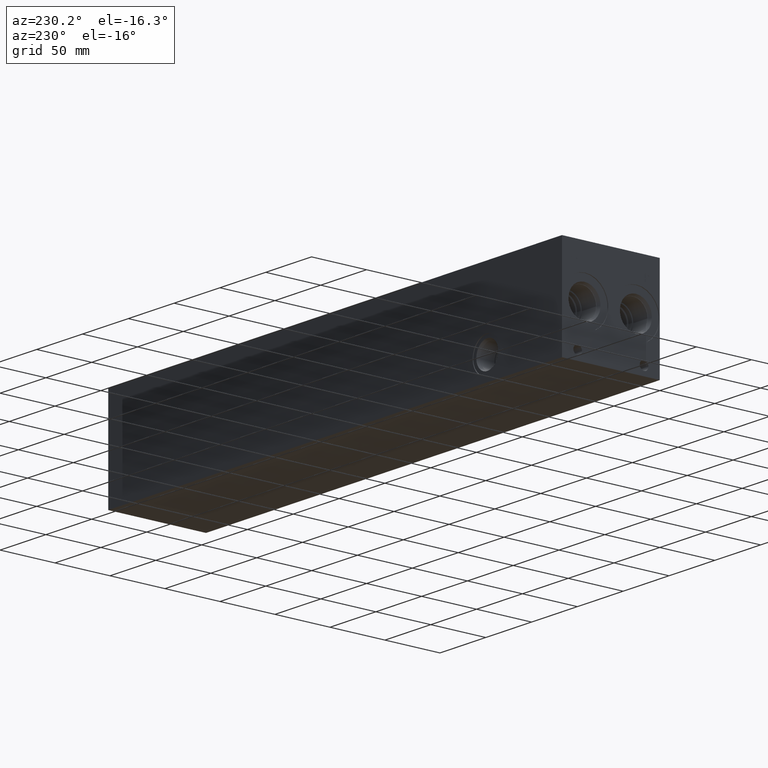
[diagram: clean part render]
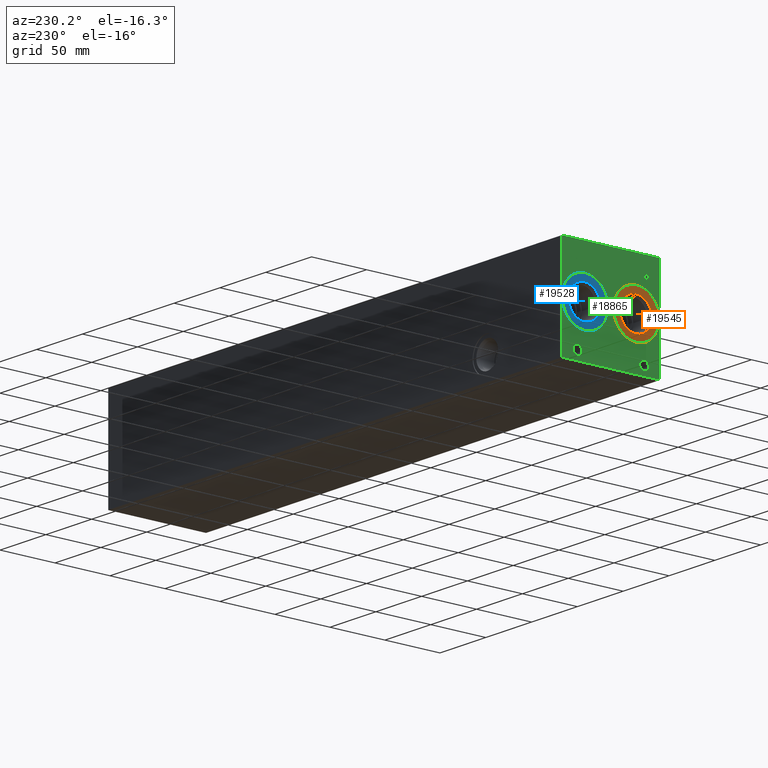
[diagram: same view with three faces highlighted in distinct colors, each labeled with its STEP entity id]
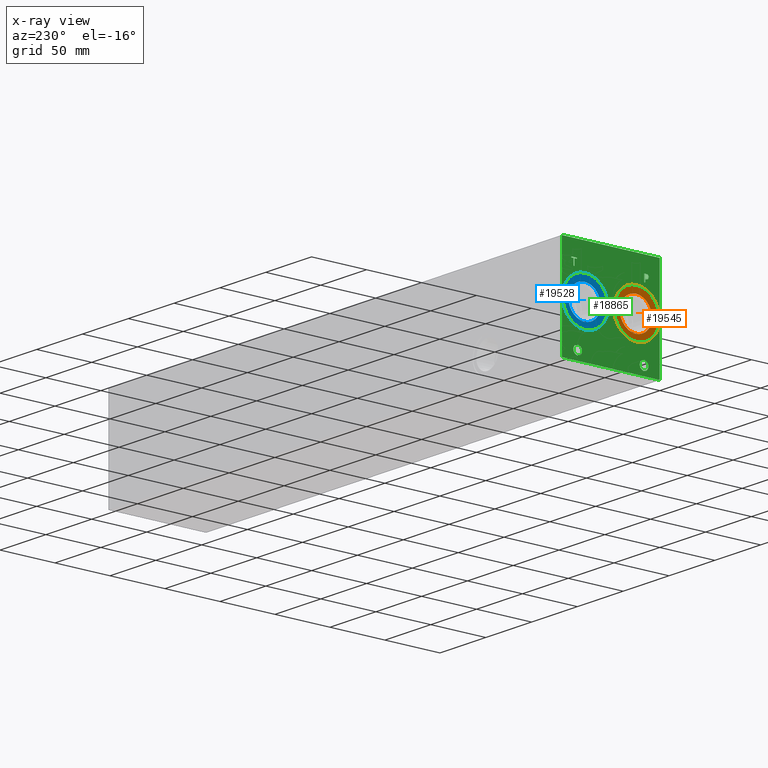
[diagram: x-ray of the same camera — body ghosted, the three highlighted faces saturated]
A machine part, auxiliary view with three faces highlighted in distinct colors.
The next image is the same camera in x-ray (body ghosted, the three faces saturated) — at least one of them is partly hidden behind the body in this view.
Their STEP definitions:

[orange] entity #19545 — the highlighted planar face has unit normal (1, 0, 0).
#452=CIRCLE('',#20494,21.0185);
#453=CIRCLE('',#20495,21.0185);
#454=CIRCLE('',#20497,14.5923);
#455=CIRCLE('',#20498,14.5923);
#1054=FACE_BOUND('',#3762,.T.);
#2624=FACE_OUTER_BOUND('',#3761,.T.);
#3761=EDGE_LOOP('',(#16112,#16113));
#3762=EDGE_LOOP('',(#16114,#16115));
#8801=VERTEX_POINT('',#33115);
#8802=VERTEX_POINT('',#33117);
#8803=VERTEX_POINT('',#33121);
#8804=VERTEX_POINT('',#33122);
#11384=EDGE_CURVE('',#8801,#8802,#452,.T.);
#11385=EDGE_CURVE('',#8802,#8801,#453,.T.);
#11386=EDGE_CURVE('',#8803,#8804,#454,.T.);
#11387=EDGE_CURVE('',#8804,#8803,#455,.T.);
#16112=ORIENTED_EDGE('',*,*,#11385,.F.);
#16113=ORIENTED_EDGE('',*,*,#11384,.F.);
#16114=ORIENTED_EDGE('',*,*,#11386,.T.);
#16115=ORIENTED_EDGE('',*,*,#11387,.T.);
#18109=PLANE('',#20496);
#19545=ADVANCED_FACE('',(#2624,#1054),#18109,.F.);
#20494=AXIS2_PLACEMENT_3D('',#33118,#23949,#23950);
#20495=AXIS2_PLACEMENT_3D('',#33119,#23951,#23952);
#20496=AXIS2_PLACEMENT_3D('',#33120,#23953,#23954);
#20497=AXIS2_PLACEMENT_3D('',#33123,#23955,#23956);
#20498=AXIS2_PLACEMENT_3D('',#33124,#23957,#23958);
#23949=DIRECTION('center_axis',(1.,0.,0.));
#23950=DIRECTION('ref_axis',(0.,0.,-1.));
#23951=DIRECTION('center_axis',(1.,0.,0.));
#23952=DIRECTION('ref_axis',(0.,0.,-1.));
#23953=DIRECTION('center_axis',(1.,0.,0.));
#23954=DIRECTION('ref_axis',(0.,0.,-1.));
#23955=DIRECTION('center_axis',(1.,0.,0.));
#23956=DIRECTION('ref_axis',(0.,0.,-1.));
#23957=DIRECTION('center_axis',(1.,0.,0.));
#23958=DIRECTION('ref_axis',(0.,0.,-1.));
#33115=CARTESIAN_POINT('',(0.7874,21.082,23.4315));
#33117=CARTESIAN_POINT('',(0.7874,21.082,65.4685));
#33118=CARTESIAN_POINT('Origin',(0.7874,21.082,44.45));
#33119=CARTESIAN_POINT('Origin',(0.7874,21.082,44.45));
#33120=CARTESIAN_POINT('Origin',(0.7874,21.082,59.0423));
#33121=CARTESIAN_POINT('',(0.7874,21.082,59.0423));
#33122=CARTESIAN_POINT('',(0.787399999999999,21.082,29.8577));
#33123=CARTESIAN_POINT('Origin',(0.7874,21.082,44.45));
#33124=CARTESIAN_POINT('Origin',(0.7874,21.082,44.45));

[blue] entity #19528 — the highlighted planar face has unit normal (1, 0, 0).
#424=CIRCLE('',#20449,21.0185);
#425=CIRCLE('',#20450,21.0185);
#426=CIRCLE('',#20452,14.5923);
#427=CIRCLE('',#20453,14.5923);
#1051=FACE_BOUND('',#3742,.T.);
#2607=FACE_OUTER_BOUND('',#3741,.T.);
#3741=EDGE_LOOP('',(#16028,#16029));
#3742=EDGE_LOOP('',(#16030,#16031));
#8771=VERTEX_POINT('',#33026);
#8772=VERTEX_POINT('',#33028);
#8773=VERTEX_POINT('',#33032);
#8774=VERTEX_POINT('',#33033);
#11342=EDGE_CURVE('',#8771,#8772,#424,.T.);
#11343=EDGE_CURVE('',#8772,#8771,#425,.T.);
#11344=EDGE_CURVE('',#8773,#8774,#426,.T.);
#11345=EDGE_CURVE('',#8774,#8773,#427,.T.);
#16028=ORIENTED_EDGE('',*,*,#11343,.F.);
#16029=ORIENTED_EDGE('',*,*,#11342,.F.);
#16030=ORIENTED_EDGE('',*,*,#11344,.T.);
#16031=ORIENTED_EDGE('',*,*,#11345,.T.);
#18106=PLANE('',#20451);
#19528=ADVANCED_FACE('',(#2607,#1051),#18106,.F.);
#20449=AXIS2_PLACEMENT_3D('',#33029,#23845,#23846);
#20450=AXIS2_PLACEMENT_3D('',#33030,#23847,#23848);
#20451=AXIS2_PLACEMENT_3D('',#33031,#23849,#23850);
#20452=AXIS2_PLACEMENT_3D('',#33034,#23851,#23852);
#20453=AXIS2_PLACEMENT_3D('',#33035,#23853,#23854);
#23845=DIRECTION('center_axis',(1.,0.,0.));
#23846=DIRECTION('ref_axis',(0.,0.,-1.));
#23847=DIRECTION('center_axis',(1.,0.,0.));
#23848=DIRECTION('ref_axis',(0.,0.,-1.));
#23849=DIRECTION('center_axis',(1.,0.,0.));
#23850=DIRECTION('ref_axis',(0.,0.,-1.));
#23851=DIRECTION('center_axis',(1.,0.,0.));
#23852=DIRECTION('ref_axis',(0.,0.,-1.));
#23853=DIRECTION('center_axis',(1.,0.,0.));
#23854=DIRECTION('ref_axis',(0.,0.,-1.));
#33026=CARTESIAN_POINT('',(0.7874,67.818,23.4315));
#33028=CARTESIAN_POINT('',(0.7874,67.818,65.4685));
#33029=CARTESIAN_POINT('Origin',(0.7874,67.818,44.45));
#33030=CARTESIAN_POINT('Origin',(0.7874,67.818,44.45));
#33031=CARTESIAN_POINT('Origin',(0.7874,67.818,59.0423));
#33032=CARTESIAN_POINT('',(0.7874,67.818,59.0423));
#33033=CARTESIAN_POINT('',(0.787399999999998,67.818,29.8577));
#33034=CARTESIAN_POINT('Origin',(0.7874,67.818,44.45));
#33035=CARTESIAN_POINT('Origin',(0.7874,67.818,44.45));

[green] entity #18865 — the highlighted planar face has unit normal (-1, 0, 0).
#318=CIRCLE('',#19910,3.9624);
#319=CIRCLE('',#19911,3.9624);
#320=CIRCLE('',#19912,3.9624);
#321=CIRCLE('',#19913,3.9624);
#322=CIRCLE('',#19914,21.0185);
#323=CIRCLE('',#19915,21.0185);
#324=CIRCLE('',#19916,21.0185);
#325=CIRCLE('',#19917,21.0185);
#963=FACE_BOUND('',#2991,.T.);
#964=FACE_BOUND('',#2992,.T.);
#965=FACE_BOUND('',#2993,.T.);
#966=FACE_BOUND('',#2994,.T.);
#967=FACE_BOUND('',#2995,.T.);
#968=FACE_BOUND('',#2996,.T.);
#1180=B_SPLINE_CURVE_WITH_KNOTS('',2,(#26242,#26243,#26244,#26245),
 .UNSPECIFIED.,.F.,.F.,(3,1,3),(0.,1.,2.),.UNSPECIFIED.);
#1182=B_SPLINE_CURVE_WITH_KNOTS('',2,(#26263,#26264,#26265,#26266),
 .UNSPECIFIED.,.F.,.F.,(3,1,3),(0.,1.,2.),.UNSPECIFIED.);
#1184=B_SPLINE_CURVE_WITH_KNOTS('',2,(#26312,#26313,#26314,#26315),
 .UNSPECIFIED.,.F.,.F.,(3,1,3),(0.,1.,2.),.UNSPECIFIED.);
#1186=B_SPLINE_CURVE_WITH_KNOTS('',2,(#26330,#26331,#26332,#26333),
 .UNSPECIFIED.,.F.,.F.,(3,1,3),(0.,1.,2.),.UNSPECIFIED.);
#1944=FACE_OUTER_BOUND('',#2990,.T.);
#2990=EDGE_LOOP('',(#12404,#12405,#12406,#12407));
#2991=EDGE_LOOP('',(#12408,#12409,#12410,#12411,#12412,#12413,#12414,#12415));
#2992=EDGE_LOOP('',(#12416,#12417));
#2993=EDGE_LOOP('',(#12418,#12419));
#2994=EDGE_LOOP('',(#12420,#12421));
#2995=EDGE_LOOP('',(#12422,#12423));
#2996=EDGE_LOOP('',(#12424,#12425,#12426,#12427,#12428,#12429,#12430,#12431,
#12432));
#4228=LINE('',#26092,#5861);
#4232=LINE('',#26100,#5865);
#4235=LINE('',#26106,#5868);
#4238=LINE('',#26112,#5871);
#4241=LINE('',#26118,#5874);
#4244=LINE('',#26124,#5877);
#4247=LINE('',#26130,#5880);
#4250=LINE('',#26135,#5883);
#4268=LINE('',#26275,#5901);
#4271=LINE('',#26281,#5904);
#4274=LINE('',#26287,#5907);
#4277=LINE('',#26293,#5910);
#4280=LINE('',#26299,#5913);
#4284=LINE('',#26342,#5917);
#4285=LINE('',#26344,#5918);
#4286=LINE('',#26346,#5919);
#4287=LINE('',#26347,#5920);
#5861=VECTOR('',#21420,10.);
#5865=VECTOR('',#21426,10.);
#5868=VECTOR('',#21431,10.);
#5871=VECTOR('',#21436,10.);
#5874=VECTOR('',#21441,10.);
#5877=VECTOR('',#21446,10.);
#5880=VECTOR('',#21451,10.);
#5883=VECTOR('',#21456,10.);
#5901=VECTOR('',#21484,10.);
#5904=VECTOR('',#21489,10.);
#5907=VECTOR('',#21494,10.);
#5910=VECTOR('',#21499,10.);
#5913=VECTOR('',#21504,10.);
#5917=VECTOR('',#21512,10.);
#5918=VECTOR('',#21513,10.);
#5919=VECTOR('',#21514,10.);
#5920=VECTOR('',#21515,10.);
#7494=VERTEX_POINT('',#26090);
#7495=VERTEX_POINT('',#26091);
#7498=VERTEX_POINT('',#26099);
#7500=VERTEX_POINT('',#26105);
#7502=VERTEX_POINT('',#26111);
#7504=VERTEX_POINT('',#26117);
#7506=VERTEX_POINT('',#26123);
#7508=VERTEX_POINT('',#26129);
#7524=VERTEX_POINT('',#26240);
#7525=VERTEX_POINT('',#26241);
#7528=VERTEX_POINT('',#26262);
#7530=VERTEX_POINT('',#26274);
#7532=VERTEX_POINT('',#26280);
#7534=VERTEX_POINT('',#26286);
#7536=VERTEX_POINT('',#26292);
#7538=VERTEX_POINT('',#26298);
#7540=VERTEX_POINT('',#26311);
#7542=VERTEX_POINT('',#26340);
#7543=VERTEX_POINT('',#26341);
#7544=VERTEX_POINT('',#26343);
#7545=VERTEX_POINT('',#26345);
#7546=VERTEX_POINT('',#26348);
#7547=VERTEX_POINT('',#26349);
#7548=VERTEX_POINT('',#26352);
#7549=VERTEX_POINT('',#26353);
#7550=VERTEX_POINT('',#26356);
#7551=VERTEX_POINT('',#26357);
#7552=VERTEX_POINT('',#26360);
#7553=VERTEX_POINT('',#26361);
#9451=EDGE_CURVE('',#7494,#7495,#4228,.T.);
#9455=EDGE_CURVE('',#7498,#7494,#4232,.T.);
#9458=EDGE_CURVE('',#7500,#7498,#4235,.T.);
#9461=EDGE_CURVE('',#7502,#7500,#4238,.T.);
#9464=EDGE_CURVE('',#7504,#7502,#4241,.T.);
#9467=EDGE_CURVE('',#7506,#7504,#4244,.T.);
#9470=EDGE_CURVE('',#7508,#7506,#4247,.T.);
#9473=EDGE_CURVE('',#7495,#7508,#4250,.T.);
#9496=EDGE_CURVE('',#7524,#7525,#1180,.T.);
#9500=EDGE_CURVE('',#7528,#7524,#1182,.T.);
#9503=EDGE_CURVE('',#7530,#7528,#4268,.T.);
#9506=EDGE_CURVE('',#7532,#7530,#4271,.T.);
#9509=EDGE_CURVE('',#7534,#7532,#4274,.T.);
#9512=EDGE_CURVE('',#7536,#7534,#4277,.T.);
#9515=EDGE_CURVE('',#7538,#7536,#4280,.T.);
#9518=EDGE_CURVE('',#7540,#7538,#1184,.T.);
#9521=EDGE_CURVE('',#7525,#7540,#1186,.T.);
#9523=EDGE_CURVE('',#7542,#7543,#4284,.T.);
#9524=EDGE_CURVE('',#7543,#7544,#4285,.T.);
#9525=EDGE_CURVE('',#7545,#7544,#4286,.T.);
#9526=EDGE_CURVE('',#7542,#7545,#4287,.T.);
#9527=EDGE_CURVE('',#7546,#7547,#318,.T.);
#9528=EDGE_CURVE('',#7547,#7546,#319,.T.);
#9529=EDGE_CURVE('',#7548,#7549,#320,.T.);
#9530=EDGE_CURVE('',#7549,#7548,#321,.T.);
#9531=EDGE_CURVE('',#7550,#7551,#322,.T.);
#9532=EDGE_CURVE('',#7551,#7550,#323,.T.);
#9533=EDGE_CURVE('',#7552,#7553,#324,.T.);
#9534=EDGE_CURVE('',#7553,#7552,#325,.T.);
#12404=ORIENTED_EDGE('',*,*,#9523,.T.);
#12405=ORIENTED_EDGE('',*,*,#9524,.T.);
#12406=ORIENTED_EDGE('',*,*,#9525,.F.);
#12407=ORIENTED_EDGE('',*,*,#9526,.F.);
#12408=ORIENTED_EDGE('',*,*,#9451,.T.);
#12409=ORIENTED_EDGE('',*,*,#9473,.T.);
#12410=ORIENTED_EDGE('',*,*,#9470,.T.);
#12411=ORIENTED_EDGE('',*,*,#9467,.T.);
#12412=ORIENTED_EDGE('',*,*,#9464,.T.);
#12413=ORIENTED_EDGE('',*,*,#9461,.T.);
#12414=ORIENTED_EDGE('',*,*,#9458,.T.);
#12415=ORIENTED_EDGE('',*,*,#9455,.T.);
#12416=ORIENTED_EDGE('',*,*,#9527,.T.);
#12417=ORIENTED_EDGE('',*,*,#9528,.T.);
#12418=ORIENTED_EDGE('',*,*,#9529,.T.);
#12419=ORIENTED_EDGE('',*,*,#9530,.T.);
#12420=ORIENTED_EDGE('',*,*,#9531,.T.);
#12421=ORIENTED_EDGE('',*,*,#9532,.T.);
#12422=ORIENTED_EDGE('',*,*,#9533,.T.);
#12423=ORIENTED_EDGE('',*,*,#9534,.T.);
#12424=ORIENTED_EDGE('',*,*,#9496,.T.);
#12425=ORIENTED_EDGE('',*,*,#9521,.T.);
#12426=ORIENTED_EDGE('',*,*,#9518,.T.);
#12427=ORIENTED_EDGE('',*,*,#9515,.T.);
#12428=ORIENTED_EDGE('',*,*,#9512,.T.);
#12429=ORIENTED_EDGE('',*,*,#9509,.T.);
#12430=ORIENTED_EDGE('',*,*,#9506,.T.);
#12431=ORIENTED_EDGE('',*,*,#9503,.T.);
#12432=ORIENTED_EDGE('',*,*,#9500,.T.);
#17708=PLANE('',#19909);
#18865=ADVANCED_FACE('',(#1944,#963,#964,#965,#966,#967,#968),#17708,.T.);
#19909=AXIS2_PLACEMENT_3D('',#26339,#21510,#21511);
#19910=AXIS2_PLACEMENT_3D('',#26350,#21516,#21517);
#19911=AXIS2_PLACEMENT_3D('',#26351,#21518,#21519);
#19912=AXIS2_PLACEMENT_3D('',#26354,#21520,#21521);
#19913=AXIS2_PLACEMENT_3D('',#26355,#21522,#21523);
#19914=AXIS2_PLACEMENT_3D('',#26358,#21524,#21525);
#19915=AXIS2_PLACEMENT_3D('',#26359,#21526,#21527);
#19916=AXIS2_PLACEMENT_3D('',#26362,#21528,#21529);
#19917=AXIS2_PLACEMENT_3D('',#26363,#21530,#21531);
#21420=DIRECTION('',(0.,1.,1.0524411238433E-14));
#21426=DIRECTION('',(0.,3.17280044688051E-15,-1.));
#21431=DIRECTION('',(0.,1.,4.16909044227778E-15));
#21436=DIRECTION('',(0.,0.,-1.));
#21441=DIRECTION('',(0.,-1.,-3.47984565141734E-15));
#21446=DIRECTION('',(0.,0.,1.));
#21451=DIRECTION('',(0.,1.,0.));
#21456=DIRECTION('',(0.,-3.17280044688052E-15,1.));
#21484=DIRECTION('',(0.,-1.,-5.56775304226775E-15));
#21489=DIRECTION('',(0.,-3.14708893596576E-15,1.));
#21494=DIRECTION('',(0.,1.,1.0524411238433E-14));
#21499=DIRECTION('',(0.,2.8141360485375E-15,-1.));
#21504=DIRECTION('',(0.,1.,0.));
#21510=DIRECTION('center_axis',(-1.,0.,0.));
#21511=DIRECTION('ref_axis',(0.,-1.,0.));
#21512=DIRECTION('',(0.,-1.,0.));
#21513=DIRECTION('',(0.,0.,1.));
#21514=DIRECTION('',(0.,-1.,0.));
#21515=DIRECTION('',(0.,0.,1.));
#21516=DIRECTION('center_axis',(1.,0.,0.));
#21517=DIRECTION('ref_axis',(0.,1.,0.));
#21518=DIRECTION('center_axis',(1.,0.,0.));
#21519=DIRECTION('ref_axis',(0.,1.,0.));
#21520=DIRECTION('center_axis',(1.,0.,0.));
#21521=DIRECTION('ref_axis',(0.,1.,0.));
#21522=DIRECTION('center_axis',(1.,0.,0.));
#21523=DIRECTION('ref_axis',(0.,1.,0.));
#21524=DIRECTION('center_axis',(1.,0.,0.));
#21525=DIRECTION('ref_axis',(0.,0.,1.));
#21526=DIRECTION('center_axis',(1.,0.,0.));
#21527=DIRECTION('ref_axis',(0.,0.,1.));
#21528=DIRECTION('center_axis',(1.,0.,0.));
#21529=DIRECTION('ref_axis',(0.,0.,1.));
#21530=DIRECTION('center_axis',(1.,0.,0.));
#21531=DIRECTION('ref_axis',(0.,0.,1.));
#26090=CARTESIAN_POINT('',(0.,77.548834728547,68.58));
#26091=CARTESIAN_POINT('',(0.,78.3927569200865,68.58));
#26092=CARTESIAN_POINT('',(0.,83.2244173642732,68.58));
#26099=CARTESIAN_POINT('',(0.,77.548834728547,74.1787033194815));
#26100=CARTESIAN_POINT('',(0.,77.5488347285471,37.0893516597408));
#26105=CARTESIAN_POINT('',(0.,75.4184457816119,74.1787033194815));
#26106=CARTESIAN_POINT('',(0.,82.1592228908058,74.1787033194816));
#26111=CARTESIAN_POINT('',(0.,75.4184457816119,74.9299999046326));
#26112=CARTESIAN_POINT('',(0.,75.4184457816119,37.4649999523163));
#26117=CARTESIAN_POINT('',(0.,80.5231458670216,74.9299999046326));
#26118=CARTESIAN_POINT('',(0.,84.7115729335107,74.9299999046326));
#26123=CARTESIAN_POINT('',(0.,80.5231458670216,74.1787033194815));
#26124=CARTESIAN_POINT('',(0.,80.5231458670216,37.0893516597408));
#26129=CARTESIAN_POINT('',(0.,78.3927569200865,74.1787033194815));
#26130=CARTESIAN_POINT('',(0.,83.6463784600433,74.1787033194815));
#26135=CARTESIAN_POINT('',(0.,78.3927569200866,34.29));
#26240=CARTESIAN_POINT('',(0.,10.8314327976406,74.5337681439707));
#26241=CARTESIAN_POINT('',(0.,10.074990345468,73.0157373726039));
#26242=CARTESIAN_POINT('Ctrl Pts',(0.,10.8314327976406,74.5337681439707));
#26243=CARTESIAN_POINT('Ctrl Pts',(0.,10.4763679731514,74.2919123939564));
#26244=CARTESIAN_POINT('Ctrl Pts',(0.,10.074990345468,73.5457616758269));
#26245=CARTESIAN_POINT('Ctrl Pts',(0.,10.074990345468,73.0157373726039));
#26262=CARTESIAN_POINT('',(0.,12.4935478456117,74.9299999046326));
#26263=CARTESIAN_POINT('Ctrl Pts',(0.,12.4935478456117,74.9299999046326));
#26264=CARTESIAN_POINT('Ctrl Pts',(0.,11.9275024732376,74.9299999046326));
#26265=CARTESIAN_POINT('Ctrl Pts',(0.,11.1350389519139,74.7447486918556));
#26266=CARTESIAN_POINT('Ctrl Pts',(0.,10.8314327976406,74.5337681439707));
#26274=CARTESIAN_POINT('',(0.,14.0887666223022,74.9299999046326));
#26275=CARTESIAN_POINT('',(0.,51.4943833111509,74.9299999046328));
#26280=CARTESIAN_POINT('',(0.,14.0887666223022,68.58));
#26281=CARTESIAN_POINT('',(0.,14.0887666223023,34.2899999999999));
#26286=CARTESIAN_POINT('',(0.,13.2448444307627,68.58));
#26287=CARTESIAN_POINT('',(0.,51.072422215381,68.5800000000004));
#26292=CARTESIAN_POINT('',(0.,13.2448444307627,70.9470988299279));
#26293=CARTESIAN_POINT('',(0.,13.2448444307628,35.4735494149638));
#26298=CARTESIAN_POINT('',(0.,12.5295689147628,70.9470988299279));
#26299=CARTESIAN_POINT('',(0.,50.7147844573814,70.9470988299279));
#26311=CARTESIAN_POINT('',(0.,10.6307439837989,71.6057698086904));
#26312=CARTESIAN_POINT('Ctrl Pts',(0.,10.6307439837989,71.6057698086904));
#26313=CARTESIAN_POINT('Ctrl Pts',(0.,10.9600794731802,71.2815801863307));
#26314=CARTESIAN_POINT('Ctrl Pts',(0.,11.8503144679139,70.9470988299279));
#26315=CARTESIAN_POINT('Ctrl Pts',(0.,12.5295689147628,70.9470988299279));
#26330=CARTESIAN_POINT('Ctrl Pts',(0.,10.074990345468,73.0157373726039));
#26331=CARTESIAN_POINT('Ctrl Pts',(0.,10.074990345468,72.6040680108774));
#26332=CARTESIAN_POINT('Ctrl Pts',(0.,10.3683047656982,71.8630631597695));
#26333=CARTESIAN_POINT('Ctrl Pts',(0.,10.6307439837989,71.6057698086904));
#26339=CARTESIAN_POINT('Origin',(0.,88.9,0.));
#26340=CARTESIAN_POINT('',(0.,88.9,0.));
#26341=CARTESIAN_POINT('',(0.,0.,0.));
#26342=CARTESIAN_POINT('',(0.,88.9,0.));
#26343=CARTESIAN_POINT('',(0.,0.,88.9));
#26344=CARTESIAN_POINT('',(0.,0.,0.));
#26345=CARTESIAN_POINT('',(0.,88.9,88.9));
#26346=CARTESIAN_POINT('',(0.,88.9,88.9));
#26347=CARTESIAN_POINT('',(0.,88.9,0.));
#26348=CARTESIAN_POINT('',(0.,18.2372,7.92479999999999));
#26349=CARTESIAN_POINT('',(0.,10.3124,7.92479999999999));
#26350=CARTESIAN_POINT('Origin',(0.,14.2748,7.92479999999999));
#26351=CARTESIAN_POINT('Origin',(0.,14.2748,7.92479999999999));
#26352=CARTESIAN_POINT('',(0.,78.5876,7.92479999999999));
#26353=CARTESIAN_POINT('',(0.,70.6628,7.92479999999999));
#26354=CARTESIAN_POINT('Origin',(0.,74.6252,7.92479999999999));
#26355=CARTESIAN_POINT('Origin',(0.,74.6252,7.92479999999999));
#26356=CARTESIAN_POINT('',(0.,21.082,65.4685));
#26357=CARTESIAN_POINT('',(0.,21.082,23.4315));
#26358=CARTESIAN_POINT('Origin',(0.,21.082,44.45));
#26359=CARTESIAN_POINT('Origin',(0.,21.082,44.45));
#26360=CARTESIAN_POINT('',(0.,67.818,65.4685));
#26361=CARTESIAN_POINT('',(0.,67.818,23.4315));
#26362=CARTESIAN_POINT('Origin',(0.,67.818,44.45));
#26363=CARTESIAN_POINT('Origin',(0.,67.818,44.45));